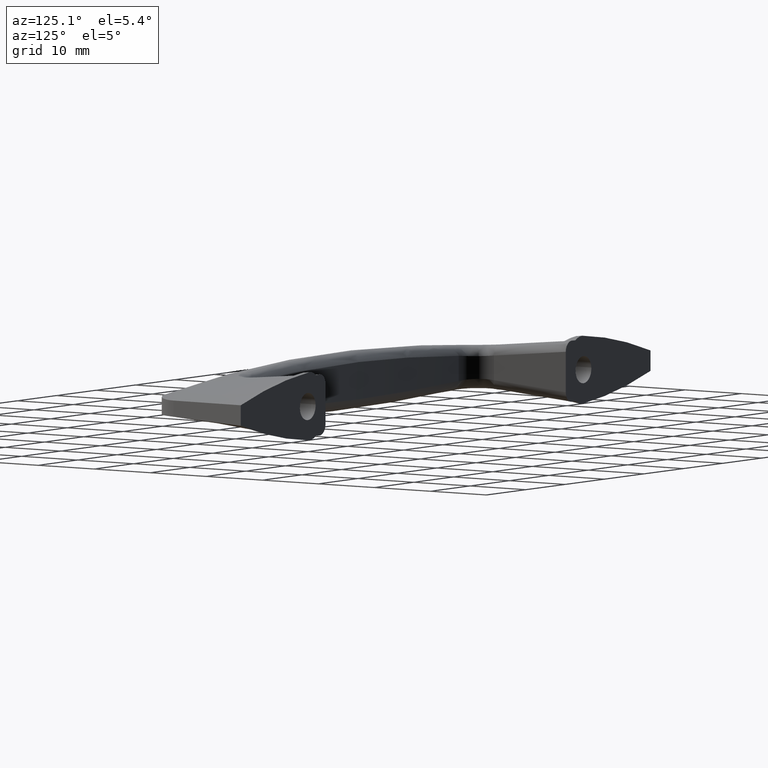
[diagram: clean part render]
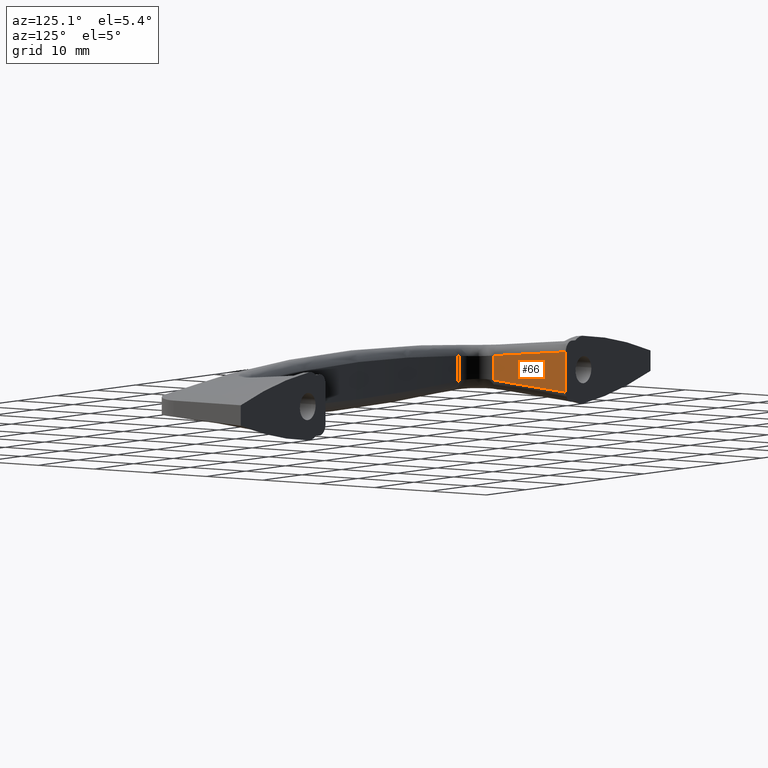
[diagram: same view with one face highlighted and labeled with its STEP entity id]
A machine part, auxiliary view. The second image highlights one B-rep face of the part: STEP entity #66.
In plain terms, the highlighted planar face has unit normal (-0.998, -0.0636, 0).
Its self-contained STEP definition (entity closure, byte-faithful):
#66=ADVANCED_FACE('',(#347),#346,.F.);
#346=PLANE('',#1830);
#347=FACE_OUTER_BOUND('',#1831,.T.);
#1827=CARTESIAN_POINT('',(4.42194409191E+00,1.22529274294E+00,-3.55599227173E+00));
#1828=DIRECTION('',(-9.97977062526E-01,-6.35750161036E-02,0.00000000000E+00));
#1829=DIRECTION('',(6.35750161036E-02,-9.97977062526E-01,0.00000000000E+00));
#1830=AXIS2_PLACEMENT_3D('',#1827,#1828,#1829);
#1831=EDGE_LOOP('',(#2188,#2189,#2190,#2191));
#2188=ORIENTED_EDGE('',*,*,#2448,.T.);
#2189=ORIENTED_EDGE('',*,*,#2403,.F.);
#2190=ORIENTED_EDGE('',*,*,#2446,.T.);
#2191=ORIENTED_EDGE('',*,*,#2432,.T.);
#2403=EDGE_CURVE('',#2837,#2844,#2845,.T.);
#2432=EDGE_CURVE('',#3019,#3032,#3040,.T.);
#2446=EDGE_CURVE('',#2837,#3019,#3135,.T.);
#2448=EDGE_CURVE('',#3032,#2844,#3147,.T.);
#2837=VERTEX_POINT('',#4012);
#2844=VERTEX_POINT('',#4018);
#2845=(BOUNDED_CURVE() B_SPLINE_CURVE(2,(#4019,#4020,#4021,#4022,#4023),.UNSPECIFIED.,.F.,.F.) B_SPLINE_CURVE_WITH_KNOTS((3,2,3),(0.00000000000E+00,5.00000000000E-01,1.00000000000E+00),.UNSPECIFIED.) CURVE() GEOMETRIC_REPRESENTATION_ITEM() RATIONAL_B_SPLINE_CURVE((1.00000000000E+00,1.00000000000E+00,1.00000000000E+00,1.00000000000E+00,1.00000000000E+00)) REPRESENTATION_ITEM('') );
#3019=VERTEX_POINT('',#4385);
#3032=VERTEX_POINT('',#4409);
#3040=(BOUNDED_CURVE() B_SPLINE_CURVE(2,(#4420,#4421,#4422,#4423,#4424),.UNSPECIFIED.,.F.,.F.) B_SPLINE_CURVE_WITH_KNOTS((3,2,3),(0.00000000000E+00,5.00000000000E-01,1.00000000000E+00),.UNSPECIFIED.) CURVE() GEOMETRIC_REPRESENTATION_ITEM() RATIONAL_B_SPLINE_CURVE((1.00000000000E+00,1.00000000000E+00,1.00000000000E+00,1.00000000000E+00,1.00000000000E+00)) REPRESENTATION_ITEM('') );
#3135=LINE('',#4589,#4590);
#3147=LINE('',#4595,#4596);
#4012=CARTESIAN_POINT('',(5.28055908085E+00,-1.22529274294E+01,1.79942927586E+00));
#4018=CARTESIAN_POINT('',(4.50000000000E+00,-4.64133400000E-16,2.96332689311E+00));
#4019=CARTESIAN_POINT('',(5.28055908085E+00,-1.22529274294E+01,1.79942927586E+00));
#4020=CARTESIAN_POINT('',(5.10017249996E+00,-9.42128567521E+00,2.01375718115E+00));
#4021=CARTESIAN_POINT('',(4.89000984470E+00,-6.12223013104E+00,2.33326732610E+00));
#4022=CARTESIAN_POINT('',(4.73480239172E+00,-3.68584100364E+00,2.56922911355E+00));
#4023=CARTESIAN_POINT('',(4.50000000000E+00,-4.64133400000E-16,2.96332689311E+00));
#4385=CARTESIAN_POINT('',(5.28055908085E+00,-1.22529274294E+01,-1.79942927586E+00));
#4409=CARTESIAN_POINT('',(4.50000000000E+00,-4.64133400000E-16,-2.96332689311E+00));
#4420=CARTESIAN_POINT('',(5.28055908085E+00,-1.22529274294E+01,-1.79942927586E+00));
#4421=CARTESIAN_POINT('',(5.10020604342E+00,-9.42181222801E+00,-2.01371584570E+00));
#4422=CARTESIAN_POINT('',(4.89000984470E+00,-6.12223013104E+00,-2.33326732615E+00));
#4423=CARTESIAN_POINT('',(4.73484749362E+00,-3.68654899657E+00,-2.56915341395E+00));
#4424=CARTESIAN_POINT('',(4.50000000000E+00,-4.64133400000E-16,-2.96332689311E+00));
#4589=CARTESIAN_POINT('',(5.28055908085E+00,-1.22529274294E+01,1.79942927586E+00));
#4590=VECTOR('',#4591,3.59885855171E+00);
#4591=DIRECTION('',(0.00000000000E+00,0.00000000000E+00,-1.00000000000E+00));
#4595=CARTESIAN_POINT('',(4.50000000000E+00,-4.64133400000E-16,-2.96332689311E+00));
#4596=VECTOR('',#4597,5.92665378621E+00);
#4597=DIRECTION('',(0.00000000000E+00,0.00000000000E+00,1.00000000000E+00));